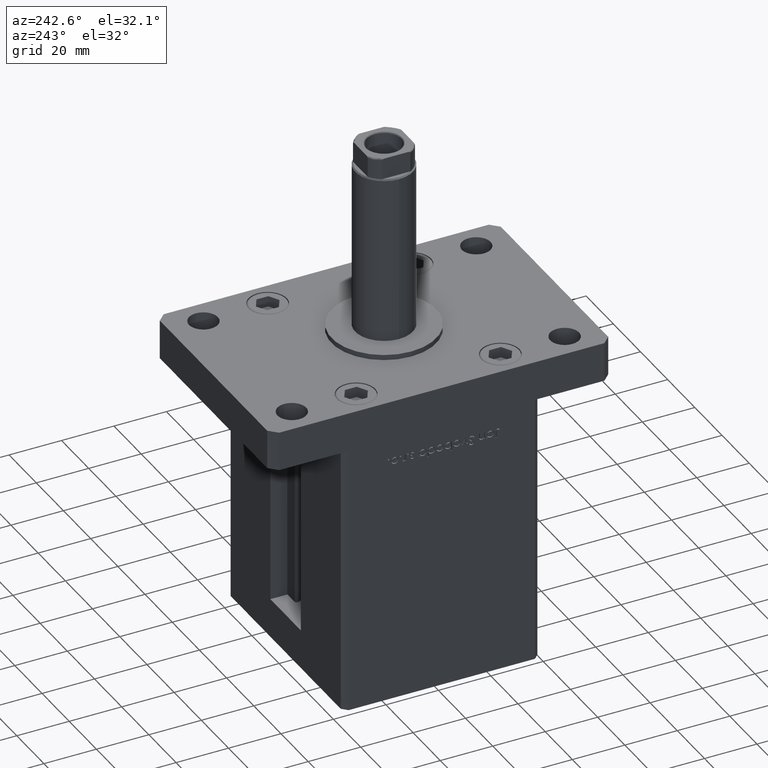
[diagram: clean part render]
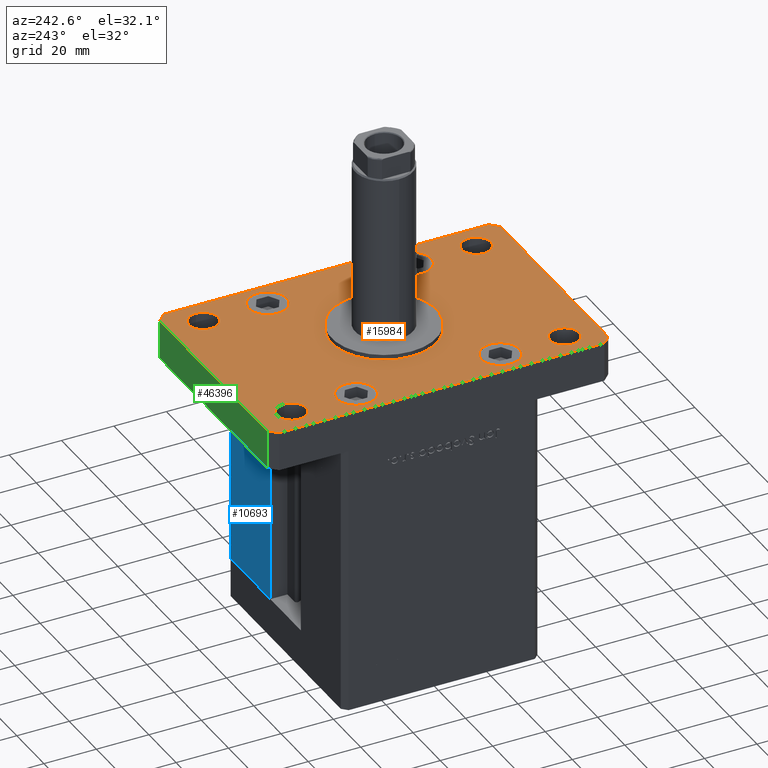
[diagram: same view with three faces highlighted in distinct colors, each labeled with its STEP entity id]
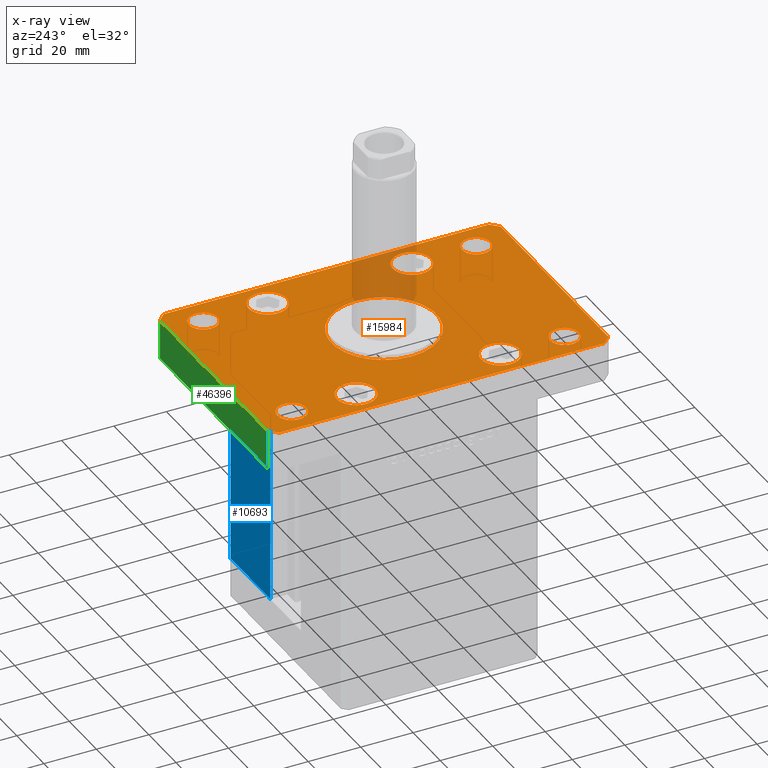
[diagram: x-ray of the same camera — body ghosted, the three highlighted faces saturated]
A machine part, auxiliary view with three faces highlighted in distinct colors.
The next image is the same camera in x-ray (body ghosted, the three faces saturated) — at least one of them is partly hidden behind the body in this view.
Their STEP definitions:

[orange] entity #15984 — the highlighted planar face has unit normal (0, 0, 1).
#105 = ORIENTED_EDGE ( 'NONE', *, *, #40896, .F. ) ;
#1476 = AXIS2_PLACEMENT_3D ( 'NONE', #53489, #52968, #7122 ) ;
#1626 = DIRECTION ( 'NONE',  ( 1.000000000000000000, 1.405345600791337191E-15, 0.000000000000000000 ) ) ;
#2268 = FACE_BOUND ( 'NONE', #8627, .T. ) ;
#2441 = CIRCLE ( 'NONE', #11934, 20.00000000000000000 ) ;
#2515 = AXIS2_PLACEMENT_3D ( 'NONE', #42545, #5365, #13779 ) ;
#2589 = LINE ( 'NONE', #23203, #17075 ) ;
#2802 = CARTESIAN_POINT ( 'NONE',  ( 25.25000000000000000, 27.50000000000000000, 15.00000000000000000 ) ) ;
#2869 = EDGE_CURVE ( 'NONE', #41547, #34344, #48440, .T. ) ;
#3006 = LINE ( 'NONE', #40163, #44625 ) ;
#3030 = ORIENTED_EDGE ( 'NONE', *, *, #22604, .F. ) ;
#3821 = EDGE_CURVE ( 'NONE', #4571, #17897, #47255, .T. ) ;
#4010 = CIRCLE ( 'NONE', #9214, 7.249999999999999112 ) ;
#4190 = CIRCLE ( 'NONE', #2515, 7.249999999999999112 ) ;
#4262 = AXIS2_PLACEMENT_3D ( 'NONE', #11612, #36832, #24370 ) ;
#4538 = CARTESIAN_POINT ( 'NONE',  ( -25.25000000000000711, 27.50000000000000000, 15.00000000000000000 ) ) ;
#4571 = VERTEX_POINT ( 'NONE', #27842 ) ;
#4616 = CIRCLE ( 'NONE', #48767, 7.249999999999999112 ) ;
#4846 = DIRECTION ( 'NONE',  ( 1.000000000000000000, 0.000000000000000000, 0.000000000000000000 ) ) ;
#4920 = VERTEX_POINT ( 'NONE', #15802 ) ;
#5253 = VERTEX_POINT ( 'NONE', #52930 ) ;
#5365 = DIRECTION ( 'NONE',  ( 0.000000000000000000, 0.000000000000000000, 1.000000000000000000 ) ) ;
#5378 = VERTEX_POINT ( 'NONE', #46380 ) ;
#5685 = DIRECTION ( 'NONE',  ( 1.000000000000000000, 0.000000000000000000, 0.000000000000000000 ) ) ;
#5913 = AXIS2_PLACEMENT_3D ( 'NONE', #41845, #45364, #49975 ) ;
#5932 = CIRCLE ( 'NONE', #40546, 20.00000000000000000 ) ;
#5961 = LINE ( 'NONE', #18418, #51710 ) ;
#5974 = CARTESIAN_POINT ( 'NONE',  ( 42.50000000000000000, -61.99999999999988631, 15.00000000000000000 ) ) ;
#6466 = EDGE_LOOP ( 'NONE', ( #13061, #53071, #8028, #50688, #18243, #28406, #40403, #7701 ) ) ;
#6644 = EDGE_CURVE ( 'NONE', #33248, #37249, #4010, .T. ) ;
#6870 = CIRCLE ( 'NONE', #10343, 5.499999999999991118 ) ;
#7028 = CARTESIAN_POINT ( 'NONE',  ( -27.00000000000000711, 52.00000000000000000, 15.00000000000000000 ) ) ;
#7047 = VERTEX_POINT ( 'NONE', #53643 ) ;
#7122 = DIRECTION ( 'NONE',  ( 1.000000000000000000, 0.000000000000000000, 0.000000000000000000 ) ) ;
#7701 = ORIENTED_EDGE ( 'NONE', *, *, #42978, .T. ) ;
#7872 = EDGE_CURVE ( 'NONE', #10057, #41547, #5961, .T. ) ;
#8028 = ORIENTED_EDGE ( 'NONE', *, *, #34628, .T. ) ;
#8558 = VECTOR ( 'NONE', #22303, 1000.000000000000000 ) ;
#8627 = EDGE_LOOP ( 'NONE', ( #14543, #34289 ) ) ;
#8631 = VERTEX_POINT ( 'NONE', #53103 ) ;
#8960 = ORIENTED_EDGE ( 'NONE', *, *, #35987, .F. ) ;
#9133 = AXIS2_PLACEMENT_3D ( 'NONE', #38369, #31056, #51929 ) ;
#9214 = AXIS2_PLACEMENT_3D ( 'NONE', #47793, #38844, #10614 ) ;
#9338 = DIRECTION ( 'NONE',  ( 0.000000000000000000, 0.000000000000000000, 1.000000000000000000 ) ) ;
#9522 = ORIENTED_EDGE ( 'NONE', *, *, #11704, .F. ) ;
#9776 = DIRECTION ( 'NONE',  ( -1.000000000000000000, -3.513364001978340512E-16, 0.000000000000000000 ) ) ;
#9823 = DIRECTION ( 'NONE',  ( 0.000000000000000000, 0.000000000000000000, 1.000000000000000000 ) ) ;
#9875 = CARTESIAN_POINT ( 'NONE',  ( 32.49999999999997868, -52.00000000000000711, 15.00000000000000000 ) ) ;
#10057 = VERTEX_POINT ( 'NONE', #44847 ) ;
#10343 = AXIS2_PLACEMENT_3D ( 'NONE', #27128, #38798, #48006 ) ;
#10614 = DIRECTION ( 'NONE',  ( 1.000000000000000000, 0.000000000000000000, 0.000000000000000000 ) ) ;
#10739 = CARTESIAN_POINT ( 'NONE',  ( 0.000000000000000000, 0.000000000000000000, 15.00000000000000000 ) ) ;
#10923 = FACE_OUTER_BOUND ( 'NONE', #6466, .T. ) ;
#11191 = FACE_BOUND ( 'NONE', #26021, .T. ) ;
#11261 = DIRECTION ( 'NONE',  ( 0.7071067811865459074, 0.7071067811865491270, 0.000000000000000000 ) ) ;
#11295 = VERTEX_POINT ( 'NONE', #16967 ) ;
#11455 = FACE_BOUND ( 'NONE', #35290, .T. ) ;
#11612 = CARTESIAN_POINT ( 'NONE',  ( -32.50000000000000000, -27.50000000000000000, 15.00000000000000000 ) ) ;
#11704 = EDGE_CURVE ( 'NONE', #24592, #29598, #17912, .T. ) ;
#11934 = AXIS2_PLACEMENT_3D ( 'NONE', #10739, #22704, #27302 ) ;
#12865 = CARTESIAN_POINT ( 'NONE',  ( 32.50000000000000000, -27.50000000000000000, 15.00000000000000000 ) ) ;
#13061 = ORIENTED_EDGE ( 'NONE', *, *, #7872, .T. ) ;
#13602 = AXIS2_PLACEMENT_3D ( 'NONE', #37636, #46313, #21360 ) ;
#13779 = DIRECTION ( 'NONE',  ( 1.000000000000000000, 0.000000000000000000, 0.000000000000000000 ) ) ;
#14390 = CARTESIAN_POINT ( 'NONE',  ( -39.50000000000003553, 65.00000000000000000, 15.00000000000000000 ) ) ;
#14543 = ORIENTED_EDGE ( 'NONE', *, *, #50295, .F. ) ;
#14740 = FACE_BOUND ( 'NONE', #41743, .T. ) ;
#15409 = CIRCLE ( 'NONE', #5913, 7.249999999999999112 ) ;
#15650 = EDGE_CURVE ( 'NONE', #5378, #39711, #5932, .T. ) ;
#15666 = CIRCLE ( 'NONE', #50346, 7.249999999999999112 ) ;
#15802 = CARTESIAN_POINT ( 'NONE',  ( 26.99999999999998579, -52.00000000000000711, 15.00000000000000000 ) ) ;
#15930 = CARTESIAN_POINT ( 'NONE',  ( -32.50000000000000000, 52.00000000000000000, 15.00000000000000000 ) ) ;
#15984 = ADVANCED_FACE ( 'NONE', ( #11455, #35376, #43507, #48630, #14740, #10923, #36418, #2268, #11191, #43772 ), #19325, .T. ) ;
#16100 = CIRCLE ( 'NONE', #20397, 5.499999999999994671 ) ;
#16228 = VERTEX_POINT ( 'NONE', #18730 ) ;
#16967 = CARTESIAN_POINT ( 'NONE',  ( -42.49999999999999289, -62.00000000000001421, 15.00000000000000000 ) ) ;
#17075 = VECTOR ( 'NONE', #52471, 1000.000000000000000 ) ;
#17294 = EDGE_LOOP ( 'NONE', ( #44811, #30064 ) ) ;
#17572 = CARTESIAN_POINT ( 'NONE',  ( -39.50000000000003553, 65.00000000000000000, 15.00000000000000000 ) ) ;
#17634 = EDGE_LOOP ( 'NONE', ( #52612, #29866 ) ) ;
#17897 = VERTEX_POINT ( 'NONE', #51599 ) ;
#17912 = CIRCLE ( 'NONE', #1476, 5.499999999999994671 ) ;
#18158 = EDGE_CURVE ( 'NONE', #5253, #7047, #6870, .T. ) ;
#18187 = LINE ( 'NONE', #14390, #26905 ) ;
#18243 = ORIENTED_EDGE ( 'NONE', *, *, #31975, .T. ) ;
#18418 = CARTESIAN_POINT ( 'NONE',  ( -39.50000000000000000, -65.00000000000000000, 15.00000000000000000 ) ) ;
#18481 = LINE ( 'NONE', #26916, #8558 ) ;
#18730 = CARTESIAN_POINT ( 'NONE',  ( -39.75000000000000000, -27.50000000000000000, 15.00000000000000000 ) ) ;
#18866 = DIRECTION ( 'NONE',  ( 0.000000000000000000, 0.000000000000000000, 1.000000000000000000 ) ) ;
#19030 = CIRCLE ( 'NONE', #4262, 7.249999999999999112 ) ;
#19325 = PLANE ( 'NONE',  #49211 ) ;
#19493 = VERTEX_POINT ( 'NONE', #28473 ) ;
#19922 = CARTESIAN_POINT ( 'NONE',  ( 39.50000000000001421, -64.99999999999988631, 15.00000000000000000 ) ) ;
#20200 = ORIENTED_EDGE ( 'NONE', *, *, #24708, .F. ) ;
#20241 = AXIS2_PLACEMENT_3D ( 'NONE', #24980, #33121, #24183 ) ;
#20259 = CARTESIAN_POINT ( 'NONE',  ( 32.50000000000000000, 27.50000000000000000, 15.00000000000000000 ) ) ;
#20397 = AXIS2_PLACEMENT_3D ( 'NONE', #22314, #9823, #42925 ) ;
#20590 = AXIS2_PLACEMENT_3D ( 'NONE', #20259, #33041, #45485 ) ;
#21360 = DIRECTION ( 'NONE',  ( 1.000000000000000000, 0.000000000000000000, 0.000000000000000000 ) ) ;
#22062 = EDGE_CURVE ( 'NONE', #7047, #5253, #33174, .T. ) ;
#22189 = CARTESIAN_POINT ( 'NONE',  ( 39.50000000000001421, -64.99999999999988631, 15.00000000000000000 ) ) ;
#22303 = DIRECTION ( 'NONE',  ( -0.7071067811865417996, 0.7071067811865532349, 0.000000000000000000 ) ) ;
#22314 = CARTESIAN_POINT ( 'NONE',  ( -32.49999999999997868, -52.00000000000000711, 15.00000000000000000 ) ) ;
#22375 = CIRCLE ( 'NONE', #20590, 7.249999999999999112 ) ;
#22456 = CARTESIAN_POINT ( 'NONE',  ( 39.75000000000000000, 27.50000000000000000, 15.00000000000000000 ) ) ;
#22604 = EDGE_CURVE ( 'NONE', #17897, #4571, #4616, .T. ) ;
#22704 = DIRECTION ( 'NONE',  ( 0.000000000000000000, 0.000000000000000000, 1.000000000000000000 ) ) ;
#23155 = VERTEX_POINT ( 'NONE', #40699 ) ;
#23173 = DIRECTION ( 'NONE',  ( 1.000000000000000000, 0.000000000000000000, 0.000000000000000000 ) ) ;
#23203 = CARTESIAN_POINT ( 'NONE',  ( 42.50000000000000000, -61.99999999999988631, 15.00000000000000000 ) ) ;
#24183 = DIRECTION ( 'NONE',  ( 1.000000000000000000, 0.000000000000000000, 0.000000000000000000 ) ) ;
#24370 = DIRECTION ( 'NONE',  ( 1.000000000000000000, 0.000000000000000000, 0.000000000000000000 ) ) ;
#24592 = VERTEX_POINT ( 'NONE', #39402 ) ;
#24645 = CARTESIAN_POINT ( 'NONE',  ( -26.99999999999998579, -52.00000000000000711, 15.00000000000000000 ) ) ;
#24650 = ORIENTED_EDGE ( 'NONE', *, *, #42241, .F. ) ;
#24708 = EDGE_CURVE ( 'NONE', #19493, #38284, #51486, .T. ) ;
#24980 = CARTESIAN_POINT ( 'NONE',  ( -32.49999999999997868, -52.00000000000000711, 15.00000000000000000 ) ) ;
#25858 = CARTESIAN_POINT ( 'NONE',  ( -42.50000000000002132, 62.00000000000000711, 15.00000000000000000 ) ) ;
#25909 = DIRECTION ( 'NONE',  ( 1.000000000000000000, 0.000000000000000000, 0.000000000000000000 ) ) ;
#26021 = EDGE_LOOP ( 'NONE', ( #24650, #52353 ) ) ;
#26815 = VERTEX_POINT ( 'NONE', #17572 ) ;
#26905 = VECTOR ( 'NONE', #48030, 1000.000000000000000 ) ;
#26916 = CARTESIAN_POINT ( 'NONE',  ( 42.50000000000000000, 62.00000000000000711, 15.00000000000000000 ) ) ;
#27128 = CARTESIAN_POINT ( 'NONE',  ( 32.50000000000000000, 51.99999999999999289, 15.00000000000000000 ) ) ;
#27171 = EDGE_CURVE ( 'NONE', #4920, #23155, #41092, .T. ) ;
#27240 = DIRECTION ( 'NONE',  ( 0.000000000000000000, 0.000000000000000000, 1.000000000000000000 ) ) ;
#27302 = DIRECTION ( 'NONE',  ( 1.000000000000000000, 0.000000000000000000, 0.000000000000000000 ) ) ;
#27407 = CARTESIAN_POINT ( 'NONE',  ( 39.50000000000002842, 65.00000000000002842, 15.00000000000000000 ) ) ;
#27502 = EDGE_CURVE ( 'NONE', #37202, #11295, #3006, .T. ) ;
#27842 = CARTESIAN_POINT ( 'NONE',  ( 25.25000000000000000, -27.50000000000000000, 15.00000000000000000 ) ) ;
#28009 = CARTESIAN_POINT ( 'NONE',  ( 0.000000000000000000, 0.000000000000000000, 15.00000000000000000 ) ) ;
#28406 = ORIENTED_EDGE ( 'NONE', *, *, #48048, .T. ) ;
#28473 = CARTESIAN_POINT ( 'NONE',  ( -37.99999999999997868, -52.00000000000000711, 15.00000000000000000 ) ) ;
#29598 = VERTEX_POINT ( 'NONE', #7028 ) ;
#29866 = ORIENTED_EDGE ( 'NONE', *, *, #33196, .F. ) ;
#29896 = DIRECTION ( 'NONE',  ( 0.7071067811865483499, -0.7071067811865466846, 0.000000000000000000 ) ) ;
#29910 = VECTOR ( 'NONE', #11261, 1000.000000000000114 ) ;
#30008 = VECTOR ( 'NONE', #9776, 1000.000000000000000 ) ;
#30064 = ORIENTED_EDGE ( 'NONE', *, *, #22062, .F. ) ;
#30167 = CARTESIAN_POINT ( 'NONE',  ( -42.49999999999999289, -62.00000000000001421, 15.00000000000000000 ) ) ;
#30195 = VECTOR ( 'NONE', #29896, 1000.000000000000000 ) ;
#30206 = EDGE_CURVE ( 'NONE', #38284, #19493, #16100, .T. ) ;
#30693 = EDGE_LOOP ( 'NONE', ( #105, #53147 ) ) ;
#31056 = DIRECTION ( 'NONE',  ( 0.000000000000000000, 0.000000000000000000, 1.000000000000000000 ) ) ;
#31940 = VERTEX_POINT ( 'NONE', #35806 ) ;
#31975 = EDGE_CURVE ( 'NONE', #8631, #26815, #46947, .T. ) ;
#31988 = CARTESIAN_POINT ( 'NONE',  ( -39.75000000000000711, 27.50000000000000000, 15.00000000000000000 ) ) ;
#32504 = DIRECTION ( 'NONE',  ( 1.000000000000000000, 0.000000000000000000, 0.000000000000000000 ) ) ;
#33041 = DIRECTION ( 'NONE',  ( 0.000000000000000000, 0.000000000000000000, 1.000000000000000000 ) ) ;
#33121 = DIRECTION ( 'NONE',  ( 0.000000000000000000, 0.000000000000000000, 1.000000000000000000 ) ) ;
#33130 = VERTEX_POINT ( 'NONE', #52587 ) ;
#33174 = CIRCLE ( 'NONE', #37497, 5.499999999999991118 ) ;
#33196 = EDGE_CURVE ( 'NONE', #23155, #4920, #36998, .T. ) ;
#33248 = VERTEX_POINT ( 'NONE', #4538 ) ;
#34289 = ORIENTED_EDGE ( 'NONE', *, *, #45190, .F. ) ;
#34344 = VERTEX_POINT ( 'NONE', #5974 ) ;
#34435 = CARTESIAN_POINT ( 'NONE',  ( 32.50000000000000000, 51.99999999999999289, 15.00000000000000000 ) ) ;
#34574 = CARTESIAN_POINT ( 'NONE',  ( 20.00000000000000000, 2.449293598294706513E-15, 15.00000000000000000 ) ) ;
#34628 = EDGE_CURVE ( 'NONE', #34344, #33130, #2589, .T. ) ;
#35236 = ORIENTED_EDGE ( 'NONE', *, *, #15650, .F. ) ;
#35290 = EDGE_LOOP ( 'NONE', ( #35236, #8960 ) ) ;
#35376 = FACE_BOUND ( 'NONE', #30693, .T. ) ;
#35503 = AXIS2_PLACEMENT_3D ( 'NONE', #15930, #48784, #32504 ) ;
#35806 = CARTESIAN_POINT ( 'NONE',  ( -25.25000000000000000, -27.50000000000000000, 15.00000000000000000 ) ) ;
#35987 = EDGE_CURVE ( 'NONE', #39711, #5378, #2441, .T. ) ;
#36146 = DIRECTION ( 'NONE',  ( 1.000000000000000000, 0.000000000000000000, -0.000000000000000000 ) ) ;
#36418 = FACE_BOUND ( 'NONE', #17294, .T. ) ;
#36832 = DIRECTION ( 'NONE',  ( 0.000000000000000000, 0.000000000000000000, 1.000000000000000000 ) ) ;
#36998 = CIRCLE ( 'NONE', #13602, 5.499999999999998224 ) ;
#37202 = VERTEX_POINT ( 'NONE', #25858 ) ;
#37249 = VERTEX_POINT ( 'NONE', #31988 ) ;
#37394 = ORIENTED_EDGE ( 'NONE', *, *, #45186, .F. ) ;
#37497 = AXIS2_PLACEMENT_3D ( 'NONE', #34435, #46352, #4846 ) ;
#37636 = CARTESIAN_POINT ( 'NONE',  ( 32.49999999999997868, -52.00000000000000711, 15.00000000000000000 ) ) ;
#38033 = LINE ( 'NONE', #30167, #30195 ) ;
#38284 = VERTEX_POINT ( 'NONE', #24645 ) ;
#38369 = CARTESIAN_POINT ( 'NONE',  ( 32.50000000000000000, -27.50000000000000000, 15.00000000000000000 ) ) ;
#38798 = DIRECTION ( 'NONE',  ( 0.000000000000000000, 0.000000000000000000, 1.000000000000000000 ) ) ;
#38844 = DIRECTION ( 'NONE',  ( 0.000000000000000000, 0.000000000000000000, 1.000000000000000000 ) ) ;
#39402 = CARTESIAN_POINT ( 'NONE',  ( -38.00000000000000000, 52.00000000000000000, 15.00000000000000000 ) ) ;
#39711 = VERTEX_POINT ( 'NONE', #34574 ) ;
#39953 = VERTEX_POINT ( 'NONE', #2802 ) ;
#40163 = CARTESIAN_POINT ( 'NONE',  ( -42.50000000000002132, 62.00000000000000711, 15.00000000000000000 ) ) ;
#40403 = ORIENTED_EDGE ( 'NONE', *, *, #27502, .T. ) ;
#40542 = EDGE_CURVE ( 'NONE', #49414, #39953, #22375, .T. ) ;
#40546 = AXIS2_PLACEMENT_3D ( 'NONE', #48942, #18866, #51968 ) ;
#40699 = CARTESIAN_POINT ( 'NONE',  ( 37.99999999999997868, -52.00000000000000711, 15.00000000000000000 ) ) ;
#40896 = EDGE_CURVE ( 'NONE', #37249, #33248, #15409, .T. ) ;
#41092 = CIRCLE ( 'NONE', #48049, 5.499999999999998224 ) ;
#41547 = VERTEX_POINT ( 'NONE', #22189 ) ;
#41743 = EDGE_LOOP ( 'NONE', ( #20200, #44821 ) ) ;
#41845 = CARTESIAN_POINT ( 'NONE',  ( -32.50000000000000711, 27.50000000000000000, 15.00000000000000000 ) ) ;
#42241 = EDGE_CURVE ( 'NONE', #39953, #49414, #4190, .T. ) ;
#42545 = CARTESIAN_POINT ( 'NONE',  ( 32.50000000000000000, 27.50000000000000000, 15.00000000000000000 ) ) ;
#42864 = CARTESIAN_POINT ( 'NONE',  ( -32.50000000000000000, -27.50000000000000000, 15.00000000000000000 ) ) ;
#42925 = DIRECTION ( 'NONE',  ( 1.000000000000000000, 0.000000000000000000, 0.000000000000000000 ) ) ;
#42978 = EDGE_CURVE ( 'NONE', #11295, #10057, #38033, .T. ) ;
#43147 = DIRECTION ( 'NONE',  ( 0.000000000000000000, 0.000000000000000000, 1.000000000000000000 ) ) ;
#43292 = CIRCLE ( 'NONE', #35503, 5.499999999999994671 ) ;
#43507 = FACE_BOUND ( 'NONE', #45082, .T. ) ;
#43772 = FACE_BOUND ( 'NONE', #17634, .T. ) ;
#43898 = EDGE_CURVE ( 'NONE', #33130, #8631, #18481, .T. ) ;
#44625 = VECTOR ( 'NONE', #48580, 1000.000000000000000 ) ;
#44811 = ORIENTED_EDGE ( 'NONE', *, *, #18158, .F. ) ;
#44821 = ORIENTED_EDGE ( 'NONE', *, *, #30206, .F. ) ;
#44847 = CARTESIAN_POINT ( 'NONE',  ( -39.50000000000000000, -65.00000000000000000, 15.00000000000000000 ) ) ;
#45082 = EDGE_LOOP ( 'NONE', ( #48027, #3030 ) ) ;
#45186 = EDGE_CURVE ( 'NONE', #29598, #24592, #43292, .T. ) ;
#45190 = EDGE_CURVE ( 'NONE', #31940, #16228, #19030, .T. ) ;
#45364 = DIRECTION ( 'NONE',  ( 0.000000000000000000, 0.000000000000000000, 1.000000000000000000 ) ) ;
#45485 = DIRECTION ( 'NONE',  ( 1.000000000000000000, 0.000000000000000000, 0.000000000000000000 ) ) ;
#46313 = DIRECTION ( 'NONE',  ( 0.000000000000000000, 0.000000000000000000, 1.000000000000000000 ) ) ;
#46352 = DIRECTION ( 'NONE',  ( 0.000000000000000000, 0.000000000000000000, 1.000000000000000000 ) ) ;
#46380 = CARTESIAN_POINT ( 'NONE',  ( -20.00000000000000000, 0.000000000000000000, 15.00000000000000000 ) ) ;
#46947 = LINE ( 'NONE', #27407, #30008 ) ;
#47255 = CIRCLE ( 'NONE', #9133, 7.249999999999999112 ) ;
#47793 = CARTESIAN_POINT ( 'NONE',  ( -32.50000000000000711, 27.50000000000000000, 15.00000000000000000 ) ) ;
#48006 = DIRECTION ( 'NONE',  ( 1.000000000000000000, 0.000000000000000000, 0.000000000000000000 ) ) ;
#48027 = ORIENTED_EDGE ( 'NONE', *, *, #3821, .F. ) ;
#48030 = DIRECTION ( 'NONE',  ( -0.7071067811865466846, -0.7071067811865483499, 0.000000000000000000 ) ) ;
#48048 = EDGE_CURVE ( 'NONE', #26815, #37202, #18187, .T. ) ;
#48049 = AXIS2_PLACEMENT_3D ( 'NONE', #9875, #27240, #23173 ) ;
#48440 = LINE ( 'NONE', #19922, #29910 ) ;
#48580 = DIRECTION ( 'NONE',  ( 2.238352872228137677E-16, -1.000000000000000000, 0.000000000000000000 ) ) ;
#48630 = FACE_BOUND ( 'NONE', #51904, .T. ) ;
#48767 = AXIS2_PLACEMENT_3D ( 'NONE', #12865, #9338, #25909 ) ;
#48784 = DIRECTION ( 'NONE',  ( 0.000000000000000000, 0.000000000000000000, 1.000000000000000000 ) ) ;
#48942 = CARTESIAN_POINT ( 'NONE',  ( 0.000000000000000000, 0.000000000000000000, 15.00000000000000000 ) ) ;
#49211 = AXIS2_PLACEMENT_3D ( 'NONE', #28009, #52174, #36146 ) ;
#49414 = VERTEX_POINT ( 'NONE', #22456 ) ;
#49975 = DIRECTION ( 'NONE',  ( 1.000000000000000000, 0.000000000000000000, 0.000000000000000000 ) ) ;
#50295 = EDGE_CURVE ( 'NONE', #16228, #31940, #15666, .T. ) ;
#50346 = AXIS2_PLACEMENT_3D ( 'NONE', #42864, #43147, #5685 ) ;
#50688 = ORIENTED_EDGE ( 'NONE', *, *, #43898, .T. ) ;
#51486 = CIRCLE ( 'NONE', #20241, 5.499999999999994671 ) ;
#51599 = CARTESIAN_POINT ( 'NONE',  ( 39.75000000000000000, -27.50000000000000000, 15.00000000000000000 ) ) ;
#51710 = VECTOR ( 'NONE', #1626, 1000.000000000000000 ) ;
#51904 = EDGE_LOOP ( 'NONE', ( #9522, #37394 ) ) ;
#51929 = DIRECTION ( 'NONE',  ( 1.000000000000000000, 0.000000000000000000, 0.000000000000000000 ) ) ;
#51968 = DIRECTION ( 'NONE',  ( 1.000000000000000000, 0.000000000000000000, 0.000000000000000000 ) ) ;
#52174 = DIRECTION ( 'NONE',  ( 0.000000000000000000, 0.000000000000000000, 1.000000000000000000 ) ) ;
#52353 = ORIENTED_EDGE ( 'NONE', *, *, #40542, .F. ) ;
#52471 = DIRECTION ( 'NONE',  ( 0.000000000000000000, 1.000000000000000000, 0.000000000000000000 ) ) ;
#52587 = CARTESIAN_POINT ( 'NONE',  ( 42.50000000000000000, 62.00000000000000711, 15.00000000000000000 ) ) ;
#52612 = ORIENTED_EDGE ( 'NONE', *, *, #27171, .F. ) ;
#52930 = CARTESIAN_POINT ( 'NONE',  ( 27.00000000000001421, 51.99999999999999289, 15.00000000000000000 ) ) ;
#52968 = DIRECTION ( 'NONE',  ( 0.000000000000000000, 0.000000000000000000, 1.000000000000000000 ) ) ;
#53071 = ORIENTED_EDGE ( 'NONE', *, *, #2869, .T. ) ;
#53103 = CARTESIAN_POINT ( 'NONE',  ( 39.50000000000002842, 65.00000000000002842, 15.00000000000000000 ) ) ;
#53147 = ORIENTED_EDGE ( 'NONE', *, *, #6644, .F. ) ;
#53489 = CARTESIAN_POINT ( 'NONE',  ( -32.50000000000000000, 52.00000000000000000, 15.00000000000000000 ) ) ;
#53643 = CARTESIAN_POINT ( 'NONE',  ( 37.99999999999999289, 51.99999999999999289, 15.00000000000000000 ) ) ;

[blue] entity #10693 — the highlighted planar face has unit normal (-0, -1, 0).
#427 = CARTESIAN_POINT ( 'NONE',  ( -11.25000000000000000, 37.50000000000000000, 73.50000000000000000 ) ) ;
#1373 = CARTESIAN_POINT ( 'NONE',  ( 11.24999999999999289, 37.50000000000000000, 73.50000000000000000 ) ) ;
#3413 = VERTEX_POINT ( 'NONE', #45755 ) ;
#5900 = AXIS2_PLACEMENT_3D ( 'NONE', #427, #41114, #49782 ) ;
#5978 = EDGE_CURVE ( 'NONE', #13778, #3413, #16383, .T. ) ;
#7061 = VERTEX_POINT ( 'NONE', #25430 ) ;
#8084 = ORIENTED_EDGE ( 'NONE', *, *, #35221, .T. ) ;
#9410 = EDGE_CURVE ( 'NONE', #7061, #47058, #40104, .T. ) ;
#10693 = ADVANCED_FACE ( 'NONE', ( #48989 ), #44655, .F. ) ;
#11561 = LINE ( 'NONE', #53335, #22890 ) ;
#11792 = CARTESIAN_POINT ( 'NONE',  ( 40.50000000000000000, 37.50000000000000711, 73.50000000000000000 ) ) ;
#12030 = CARTESIAN_POINT ( 'NONE',  ( 40.50000000000000000, 37.50000000000000711, 73.50000000000000000 ) ) ;
#13778 = VERTEX_POINT ( 'NONE', #12030 ) ;
#16383 = LINE ( 'NONE', #11792, #45562 ) ;
#18385 = ORIENTED_EDGE ( 'NONE', *, *, #24856, .T. ) ;
#22890 = VECTOR ( 'NONE', #32199, 1000.000000000000000 ) ;
#24856 = EDGE_CURVE ( 'NONE', #47058, #13778, #11561, .T. ) ;
#25430 = CARTESIAN_POINT ( 'NONE',  ( 11.25000000000000000, 37.50000000000000000, 0.000000000000000000 ) ) ;
#26331 = ORIENTED_EDGE ( 'NONE', *, *, #5978, .T. ) ;
#27118 = DIRECTION ( 'NONE',  ( -0.000000000000000000, -0.000000000000000000, 1.000000000000000000 ) ) ;
#27651 = CARTESIAN_POINT ( 'NONE',  ( 11.25000000000000000, 37.50000000000000000, 0.000000000000000000 ) ) ;
#28286 = DIRECTION ( 'NONE',  ( -1.000000000000000000, 2.372271420139223331E-16, 0.000000000000000000 ) ) ;
#28616 = DIRECTION ( 'NONE',  ( -0.000000000000000000, -0.000000000000000000, -1.000000000000000000 ) ) ;
#31025 = VECTOR ( 'NONE', #28286, 1000.000000000000000 ) ;
#32199 = DIRECTION ( 'NONE',  ( 1.000000000000000000, 0.000000000000000000, 0.000000000000000000 ) ) ;
#35221 = EDGE_CURVE ( 'NONE', #3413, #7061, #36949, .T. ) ;
#36949 = LINE ( 'NONE', #48893, #31025 ) ;
#37856 = EDGE_LOOP ( 'NONE', ( #8084, #39626, #18385, #26331 ) ) ;
#39626 = ORIENTED_EDGE ( 'NONE', *, *, #9410, .T. ) ;
#40104 = LINE ( 'NONE', #27651, #44837 ) ;
#41114 = DIRECTION ( 'NONE',  ( -2.372271420139223331E-16, -1.000000000000000000, 0.000000000000000000 ) ) ;
#44655 = PLANE ( 'NONE',  #5900 ) ;
#44837 = VECTOR ( 'NONE', #27118, 1000.000000000000000 ) ;
#45562 = VECTOR ( 'NONE', #28616, 1000.000000000000000 ) ;
#45755 = CARTESIAN_POINT ( 'NONE',  ( 40.50000000000000000, 37.50000000000000711, 0.000000000000000000 ) ) ;
#47058 = VERTEX_POINT ( 'NONE', #1373 ) ;
#48893 = CARTESIAN_POINT ( 'NONE',  ( -11.25000000000000000, 37.50000000000000000, 0.000000000000000000 ) ) ;
#48989 = FACE_OUTER_BOUND ( 'NONE', #37856, .T. ) ;
#49782 = DIRECTION ( 'NONE',  ( 1.000000000000000000, -2.372271420139223331E-16, 0.000000000000000000 ) ) ;
#53335 = CARTESIAN_POINT ( 'NONE',  ( -11.25000000000000000, 37.50000000000000000, 73.50000000000000000 ) ) ;

[green] entity #46396 — the highlighted planar face has unit normal (0, -1, 0).
#3190 = ORIENTED_EDGE ( 'NONE', *, *, #31299, .F. ) ;
#4298 = VECTOR ( 'NONE', #15087, 1000.000000000000000 ) ;
#4357 = PLANE ( 'NONE',  #30344 ) ;
#4669 = EDGE_CURVE ( 'NONE', #41543, #8974, #20195, .T. ) ;
#8631 = VERTEX_POINT ( 'NONE', #53103 ) ;
#8974 = VERTEX_POINT ( 'NONE', #18214 ) ;
#9776 = DIRECTION ( 'NONE',  ( -1.000000000000000000, -3.513364001978340512E-16, 0.000000000000000000 ) ) ;
#15087 = DIRECTION ( 'NONE',  ( -0.000000000000000000, -0.000000000000000000, -1.000000000000000000 ) ) ;
#16547 = CARTESIAN_POINT ( 'NONE',  ( 39.50000000000002842, 65.00000000000002842, 15.00000000000000000 ) ) ;
#16743 = LINE ( 'NONE', #26470, #41248 ) ;
#17572 = CARTESIAN_POINT ( 'NONE',  ( -39.50000000000003553, 65.00000000000000000, 15.00000000000000000 ) ) ;
#18104 = CARTESIAN_POINT ( 'NONE',  ( 39.50000000000002842, 65.00000000000002842, 0.000000000000000000 ) ) ;
#18214 = CARTESIAN_POINT ( 'NONE',  ( -39.50000000000003553, 65.00000000000000000, 0.000000000000000000 ) ) ;
#20195 = LINE ( 'NONE', #48970, #29080 ) ;
#25252 = DIRECTION ( 'NONE',  ( 3.513364001978341005E-16, -1.000000000000000000, 0.000000000000000000 ) ) ;
#25800 = FACE_OUTER_BOUND ( 'NONE', #33351, .T. ) ;
#26470 = CARTESIAN_POINT ( 'NONE',  ( -39.50000000000003553, 65.00000000000000000, 15.00000000000000000 ) ) ;
#26815 = VERTEX_POINT ( 'NONE', #17572 ) ;
#27407 = CARTESIAN_POINT ( 'NONE',  ( 39.50000000000002842, 65.00000000000002842, 15.00000000000000000 ) ) ;
#29080 = VECTOR ( 'NONE', #52790, 1000.000000000000000 ) ;
#30008 = VECTOR ( 'NONE', #9776, 1000.000000000000000 ) ;
#30344 = AXIS2_PLACEMENT_3D ( 'NONE', #16547, #25252, #45856 ) ;
#30493 = ORIENTED_EDGE ( 'NONE', *, *, #4669, .T. ) ;
#31299 = EDGE_CURVE ( 'NONE', #26815, #8974, #16743, .T. ) ;
#31975 = EDGE_CURVE ( 'NONE', #8631, #26815, #46947, .T. ) ;
#33351 = EDGE_LOOP ( 'NONE', ( #30493, #3190, #50183, #52428 ) ) ;
#36517 = LINE ( 'NONE', #53067, #4298 ) ;
#41248 = VECTOR ( 'NONE', #43015, 1000.000000000000000 ) ;
#41543 = VERTEX_POINT ( 'NONE', #18104 ) ;
#43015 = DIRECTION ( 'NONE',  ( -0.000000000000000000, -0.000000000000000000, -1.000000000000000000 ) ) ;
#45653 = EDGE_CURVE ( 'NONE', #8631, #41543, #36517, .T. ) ;
#45856 = DIRECTION ( 'NONE',  ( 1.000000000000000000, 3.513364001978341005E-16, 0.000000000000000000 ) ) ;
#46396 = ADVANCED_FACE ( 'NONE', ( #25800 ), #4357, .F. ) ;
#46947 = LINE ( 'NONE', #27407, #30008 ) ;
#48970 = CARTESIAN_POINT ( 'NONE',  ( 39.50000000000002842, 65.00000000000002842, 0.000000000000000000 ) ) ;
#50183 = ORIENTED_EDGE ( 'NONE', *, *, #31975, .F. ) ;
#52428 = ORIENTED_EDGE ( 'NONE', *, *, #45653, .T. ) ;
#52790 = DIRECTION ( 'NONE',  ( -1.000000000000000000, -3.513364001978340512E-16, 0.000000000000000000 ) ) ;
#53067 = CARTESIAN_POINT ( 'NONE',  ( 39.50000000000002842, 65.00000000000002842, 15.00000000000000000 ) ) ;
#53103 = CARTESIAN_POINT ( 'NONE',  ( 39.50000000000002842, 65.00000000000002842, 15.00000000000000000 ) ) ;